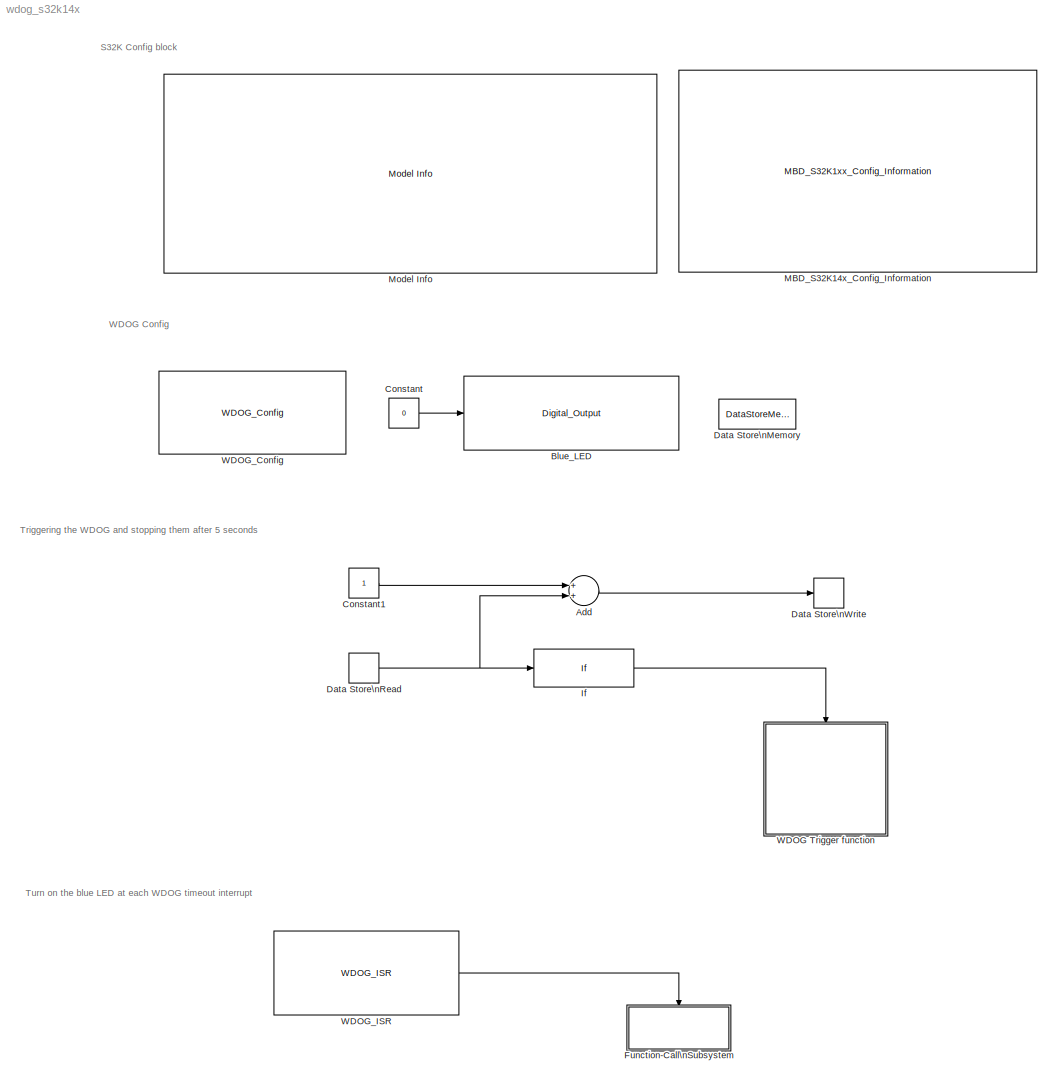
MODEL wdog_s32k14x
KIND model
CONFIG InitFcn = mbd_s32k_consistency_checks(bdroot(gcs));
BLOCK [Sum] Add
  InputSameDT = off
  OutDataTypeStr = Inherit: Inherit via internal rule
  Ports = [2, 1]
  SID = 46
  SaturateOnIntegerOverflow = off
BLOCK [Reference] Blue_LED  REF=mbd_s32k1xx_ec_toolbox/GPIO Blocks/Digital_Output
  Ports = [1]
  SID = 26
  SourceBlock = mbd_s32k1xx_ec_toolbox/GPIO Blocks/Digital_Output
  SourceType = gpio_s32k_output
  drive_strength = Low
  gpio_pin = PTD0: [PTD0 | Port D I/O]
  init_val = Low
BLOCK [Constant] Constant
  OutDataTypeStr = boolean
  SID = 27
  Value = 0
BLOCK [Constant] Constant1
  OutDataTypeStr = uint8
  SID = 47
BLOCK [DataStoreMemory] Data Store\nMemory
  OutDataTypeStr = uint8
  ReadBeforeWriteMsg = warning
  SID = 42
  ShowAdditionalParam = off
  WriteAfterReadMsg = warning
  WriteAfterWriteMsg = warning
BLOCK [DataStoreRead] Data Store\nRead
  Ports = [0, 1]
  SID = 44
BLOCK [DataStoreWrite] Data Store\nWrite
  Ports = [1]
  SID = 45
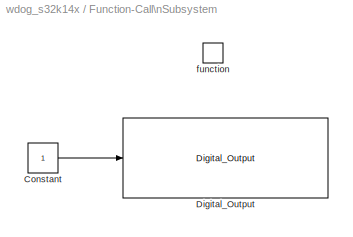
BLOCK [SubSystem] Function-Call\nSubsystem
  Ports = [0, 0, 0, 1]
  RequestExecContextInheritance = off
  SID = 79
  TreatAsAtomicUnit = on
  Variant = off
BLOCK [Constant] Function-Call\nSubsystem/Constant
  OutDataTypeStr = boolean
  SID = 165
BLOCK [Reference] Function-Call\nSubsystem/Digital_Output  REF=mbd_s32k1xx_ec_toolbox/GPIO Blocks/Digital_Output
  Ports = [1]
  SID = 164
  SourceBlock = mbd_s32k1xx_ec_toolbox/GPIO Blocks/Digital_Output
  SourceType = gpio_s32k_output
  drive_strength = Low
  gpio_pin = PTD0: [PTD0 | Port D I/O]
  init_val = Low
BLOCK [TriggerPort] Function-Call\nSubsystem/function
  Ports = []
  SID = 81
  StatesWhenEnabling = held
  TriggerType = function-call
  VariantControl = Variant
BLOCK [If] If
  IfExpression = u1 < 5
  Ports = [1, 1]
  SID = 50
  ShowElse = off
BLOCK [Reference] MBD_S32K14x_Config_Information  REF=mbd_s32k1xx_ec_toolbox/MBD_S32K1xx_Config_Information
  ADC_PcrCheckEnDis = on
  AMMCLIB_PcrCheckEnDis = on
  CMP_PcrCheckEnDis = on
  CSEc_PcrCheckEnDis = on
  ConfigParams_PcrCheckEnDis = on
  FM_PcrCheckEnDis = on
  FTM_Dual_Edge_Inputs_PcrCheckEnDis = on
  FTM_Hall_Sensor_Inputs_PcrCheckEnDis = on
  FTM_Input_Edge_Inputs_PcrCheckEnDis = on
  FTM_PWM_PcrCheckEnDis = on
  FTM_Quadrature_Inputs_PcrCheckEnDis = on
  FlexCAN_PcrCheckEnDis = on
  FlexIO_PcrCheckEnDis = on
  GPIO_InputPcrCheckEnDis = on
  GPIO_OutputPcrCheckEnDis = on
  LIN_PcrCheckEnDis = on
  LPI2C_PcrCheckEnDis = on
  LPSPI_PcrCheckEnDis = on
  LPTMR_PcrCheckEnDis = on
  LPUART_PcrCheckEnDis = on
  ModelRef_PcrCheckEnDis = on
  PDB0_PcrCheckEnDis = on
  PIT_PcrCheckEnDis = on
  Ports = []
  Profile_PcrCheckEnDis = on
  RTC_PcrCheckEnDis = on
  SBC_PcrCheckEnDis = on
  SID = 39
  SourceBlock = mbd_s32k1xx_ec_toolbox/MBD_S32K1xx_Config_Information
  SourceType = MBDTBX_EC_S32K
  WDOG_PcrCheckEnDis = on
  config_params = []
  disp_str = Target : S32K144-64KB_SRAM\nPackage : 100-pin\nSystem clock : 80 MHz\nXTAL clock : External 8 MHz\nCompiler : IAR\nTarget Type : FLASH\nDownload Code after build : off\nStep Tick Interrupt Priority : 15
  ds_import_enable = on
  eDMA_PcrCheckEnDis = on
  gcc_target_assemble_opts = -mcpu=cortex-m4 -mthumb -mfloat-abi=hard -mfpu=fpv4-sp-d16 -g
  gcc_target_compile_opts = -mcpu=cortex-m4 -mthumb -mfloat-abi=hard -mfpu=fpv4-sp-d16 -O1 -g -gstrict-dwarf
  gcc_target_default_lcf = on
  gcc_target_link_opts = -mcpu=cortex-m4 -mthumb -mfloat-abi=hard -mfpu=fpv4-sp-d16
  gcc_target_user_lcf = S32K144_64_flash.ld
  ghs_target_assemble_opts = -cpu=cortexm4f -fpu=vfpv4_d16
  ghs_target_compile_opts = -cpu=cortexm4f -thumb -DARM_MATH_CM4 -fpu=vfpv4_d16 -fsingle -Ogeneral -Wundef -Wimplicit-int -Wshadow -Wtrigraphs --no_commons --gnu_asm -gnu99 -gdwarf-2 -G
  ghs_target_default_lcf = off
  ghs_target_link_opts = -cpu=cortexm4f -thumb -fpu=vfpv4_d16
  ghs_target_user_lcf = S32K144_64_flash.ld
  iar_target_assemble_opts = --cpu Cortex-M4F --thumb --fpu VFPv4_sp
  iar_target_compile_opts = --cpu=Cortex-M4F --thumb --fpu=VFPv4_sp -Ol -e --debug --dlib_config normal
  iar_target_default_lcf = off
  iar_target_link_opts = --no_exceptions --vfe --inline
  iar_target_user_lcf = S32K144_64_flash.icf
  mbdt_ver = 0
  mcu_steptick_prio = 15
  mcu_steptick_timer = LPIT Channel 0
  mcu_system_clock_freq = 80
  mcu_target_name = S32K144
  mcu_target_package = 100-LQFP
  mcu_target_sram_size = 64KB
  mcu_xtal_freq = External 8
  pil_download_enable = off
  pil_download_rate = 57600
  pil_opensda_drive = Custom
  pil_opensda_drive_custom = D
  pil_uart_instance = 0
  pil_uart_rx = PTA2: [LPUART0_RX | Receive]
  pil_uart_tx = PTA3: [LPUART0_TX | Transmit]
  rbl_com_port = Custom
  rbl_com_port_custom = COM1
  rbl_download_enable = on
  rbl_download_interface = OpenSDA
  rbl_restart_request = off
  rbl_start_delay = 5000000
  target_compiler = GCC
  target_memory = FLASH
BLOCK [Reference] Model Info  REF=simulink/Model-Wide\nUtilities/Model Info
  DisplayStringWithTags = Model Name: %<ModelName>\n\nDescription: %<Description>
  Frame = off
  HorizontalTextAlignment = Left
  LeftAlignmentValue = 0.02
  MaskDisplayString = Model Name: wdog_s32k14x\\n\\nDescription: This example shows how to use watchdog to safeguard the \\napplication by reseting the board every 7 seconds.\\nThe code sets the WDOG to reset the board after 2 seconds if the WDOG Trigger is\\nnot called in the 2 seconds interval. Every second the A variable is incremented and \\nthe red LED is toggled. When the A variable becomes 5 the WDOG Trigger is ...<+496ch>
  Ports = []
  SID = 38
  SourceBlock = simulink/Model-Wide\nUtilities/Model Info
  SourceProductBaseCode = SL
  SourceProductName = Simulink
  SourceType = CMBlock
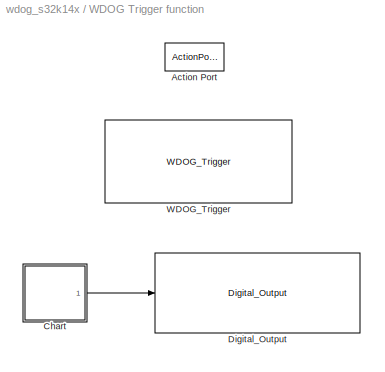
BLOCK [SubSystem] WDOG Trigger function
  Ports = [0, 0, 0, 0, 0, 0, 0, 1]
  RequestExecContextInheritance = off
  SID = 51
  Variant = off
BLOCK [ActionPort] WDOG Trigger function/Action Port
  SID = 52
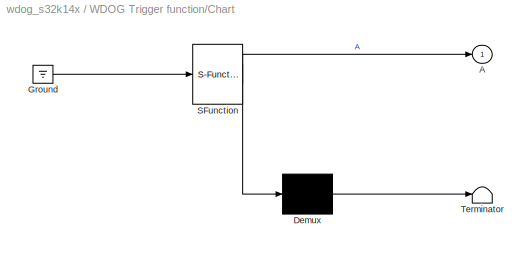
BLOCK [SubSystem] WDOG Trigger function/Chart
  ErrorFcn = Stateflow.Translate.translate
  PermitHierarchicalResolution = ExplicitOnly
  Ports = [0, 1]
  RequestExecContextInheritance = off
  SFBlockType = Chart
  SID = 48
  TreatAsAtomicUnit = on
  Variant = off
BLOCK [Outport] WDOG Trigger function/Chart/ A
  IconDisplay = Port number
  SID = 48::6
BLOCK [Demux] WDOG Trigger function/Chart/ Demux 
  Outputs = 1
  Ports = [1, 1]
  SID = 48::36
BLOCK [Ground] WDOG Trigger function/Chart/ Ground 
  SID = 48::38
BLOCK [S-Function] WDOG Trigger function/Chart/ SFunction 
  EnableBusSupport = off
  FunctionName = sf_sfun
  PortCounts = [1 2]
  Ports = [1, 2]
  SFcnIsStateOwnerBlock = off
  SFunctionDeploymentMode = off
  SID = 48::35
  Tag = Stateflow S-Function wdog_s32k14x 3
BLOCK [Terminator] WDOG Trigger function/Chart/ Terminator 
  SID = 48::37
BLOCK [Reference] WDOG Trigger function/Digital_Output  REF=mbd_s32k1xx_ec_toolbox/GPIO Blocks/Digital_Output
  Ports = [1]
  SID = 49
  SourceBlock = mbd_s32k1xx_ec_toolbox/GPIO Blocks/Digital_Output
  SourceType = gpio_s32k_output
  drive_strength = Low
  gpio_pin = PTD15: [PTD15 | Port D I/O]
  init_val = Low
BLOCK [Reference] WDOG Trigger function/WDOG_Trigger  REF=mbd_s32k1xx_ec_toolbox/Core and System Blocks/WDOG Blocks/WDOG_Trigger
  Ports = []
  SID = 8
  SourceBlock = mbd_s32k1xx_ec_toolbox/Core and System Blocks/WDOG Blocks/WDOG_Trigger
  SourceType = wdog_s32k_trigger
BLOCK [Reference] WDOG_Config  REF=mbd_s32k1xx_ec_toolbox/Core and System Blocks/WDOG Blocks/WDOG_Config
  Ports = []
  SID = 7
  SourceBlock = mbd_s32k1xx_ec_toolbox/Core and System Blocks/WDOG Blocks/WDOG_Config
  SourceType = wdog_s32k_config
  clk_source = LPO clock
  int_enable = on
  prescaler_enable = on
  show_adv_opts = on
  timeout_value = 2.000
  timeout_value_unit = seconds
  update_enable = off
  window_enable = off
  window_value = 2.000
  window_value_unit = milliseconds
BLOCK [Reference] WDOG_ISR  REF=mbd_s32k1xx_ec_toolbox/Core and System Blocks/WDOG Blocks/WDOG_ISR
  Ports = [0, 1]
  SID = 58
  SourceBlock = mbd_s32k1xx_ec_toolbox/Core and System Blocks/WDOG Blocks/WDOG_ISR
  SourceType = wdog_s32k_isr
ANNOTATION (root): S32K Config block
ANNOTATION (root): Triggering the WDOG and stopping them after 5 seconds
ANNOTATION (root): Turn on the blue LED at each WDOG timeout interrupt
ANNOTATION (root): WDOG Config
LINE Add:1 -> Data Store\nWrite:1
LINE Constant1:1 -> Add:1
LINE Constant:1 -> Blue_LED:1
NET Data Store\nRead:1 -> Add:2, If:1
LINE Function-Call\nSubsystem/Constant:1 -> Function-Call\nSubsystem/Digital_Output:1
LINE If:1 -> WDOG Trigger function:ifaction
LINE WDOG Trigger function/Chart/ Demux :1 -> WDOG Trigger function/Chart/ Terminator :1
LINE WDOG Trigger function/Chart/ Ground :1 -> WDOG Trigger function/Chart/ SFunction :1
LINE WDOG Trigger function/Chart/ SFunction :1 -> WDOG Trigger function/Chart/ Demux :1
LINE WDOG Trigger function/Chart/ SFunction :2 -> WDOG Trigger function/Chart/ A:1
LINE WDOG Trigger function/Chart:1 -> WDOG Trigger function/Digital_Output:1
LINE WDOG_ISR:1 -> Function-Call\nSubsystem:trigger
note: NET lines group one-source signal fan-out (src -> all destinations, sorted); 1:1 wires keep LINE
CHART WDOG Trigger function/Chart states=2 transitions=3
  STATE_LABEL 'A'
  STATE_LABEL 'A1'
